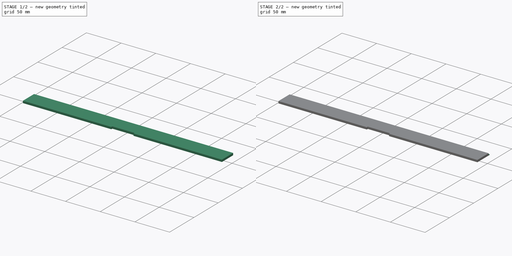
[diagram: build sequence overview — one tinted view per stage of 2, left to right]
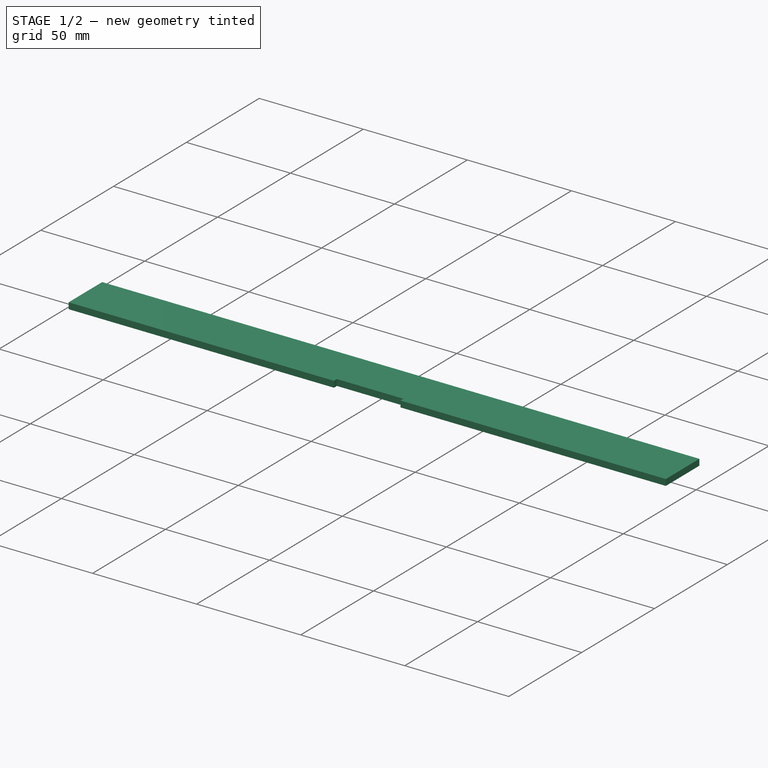
[diagram: stage 1 of 2 — iso view after this stage's code; geometry added in this stage tinted green]
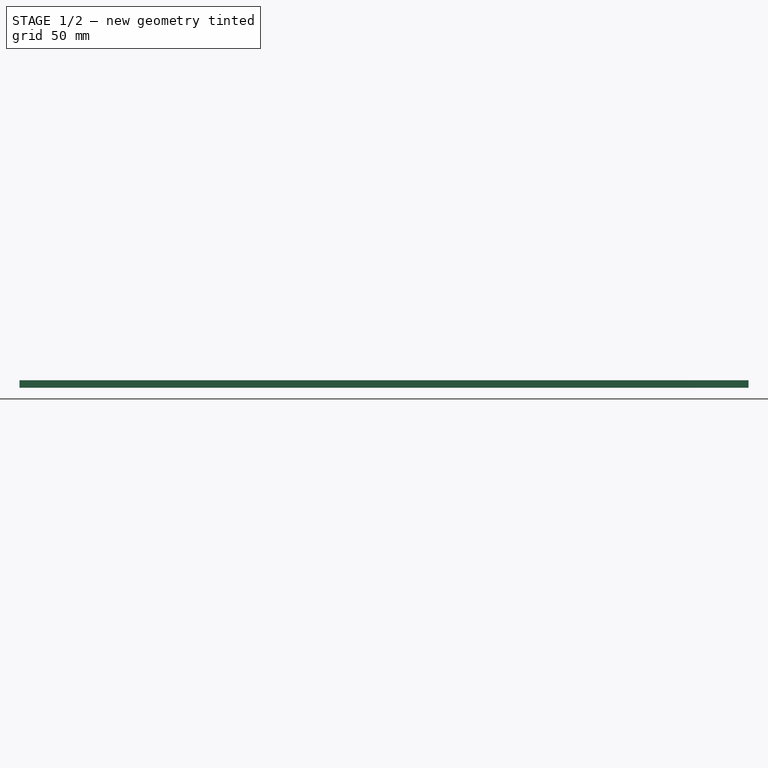
[diagram: stage 1 of 2 — front view after this stage's code; geometry added in this stage tinted green]
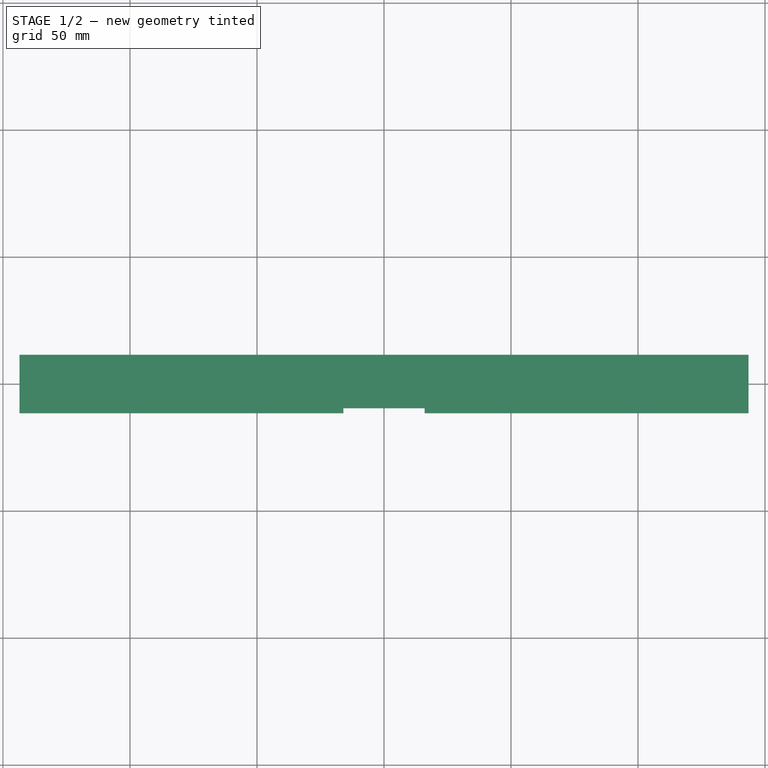
[diagram: stage 1 of 2 — top view after this stage's code; geometry added in this stage tinted green]
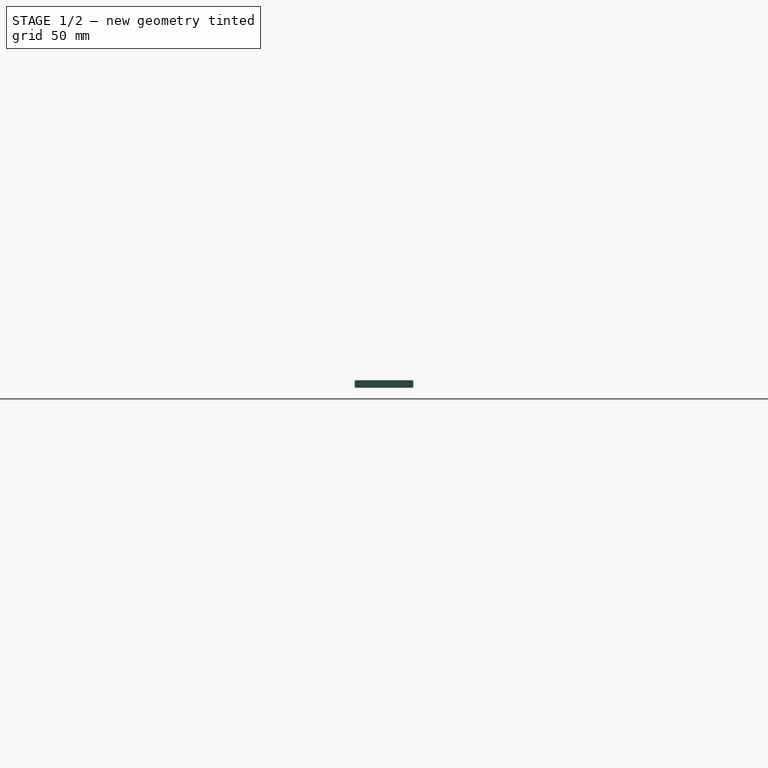
[diagram: stage 1 of 2 — right view after this stage's code; geometry added in this stage tinted green]
FCSTD DOCUMENT  (FreeCAD 1.0R39109 (Git))
Label: keyboard top blank
License: All rights reserved
LicenseURL: http://en.wikipedia.org/wiki/All_rights_reserved
objects: Sketcher::SketchObject×2, PartDesign::Pad×2, PartDesign::Body×1
note: 11 computed .brp shape members not serialized (recipe doc carries the construction recipe); baked Part::Feature solids carry a one-line shape summary decoded from their .brp

FEATURE [Sketcher::SketchObject] Sketch
  ArcFitTolerance = 1e-06
  AttachmentSupport = -> [XY_Plane]
  FullyConstrained = true
  MakeInternals = false
  MapMode = 5
  sketch-geometry (8):
    g0: LineSegment StartX=-143.5 StartY=11.5 StartZ=0 EndX=-143.5 EndY=-11.5 EndZ=0
    g1: LineSegment StartX=-143.5 StartY=-11.5 StartZ=0 EndX=-16 EndY=-11.5 EndZ=0
    g2: LineSegment StartX=143.5 StartY=-11.5 StartZ=0 EndX=143.5 EndY=11.5 EndZ=0
    g3: LineSegment StartX=143.5 StartY=11.5 StartZ=0 EndX=-143.5 EndY=11.5 EndZ=0
    g4: LineSegment StartX=16 StartY=-11.5 StartZ=0 EndX=16 EndY=-9.5 EndZ=0
    g5: LineSegment StartX=16 StartY=-9.5 StartZ=0 EndX=-16 EndY=-9.5 EndZ=0
    g6: LineSegment StartX=-16 StartY=-9.5 StartZ=0 EndX=-16 EndY=-11.5 EndZ=0
    g7: LineSegment StartX=16 StartY=-11.5 StartZ=0 EndX=143.5 EndY=-11.5 EndZ=0
  constraints (24):
    c: Distance(g0) = 23
    c: Vertical(g0)
    c: DistanceY(g-1,g0) = 11.5
    c: Horizontal(g1)
    c: Coincident(g1,g0)
    c: DistanceX(g0,g-1) = 143.5
    c: Coincident(g2,g7)
    c: Vertical(g2)
    c: Coincident(g3,g2)
    c: Coincident(g3,g0)
    c: Horizontal(g3)
    c: Coincident(g4,g5)
    c: Coincident(g5,g6)
    c: Vertical(g4)
    c: DistanceX(g-1,g4) = 16
    c: DistanceX(g7,g7) = 127.5
    c: DistanceY(g4,g4) = 2
    c: Coincident(g6,g1)
    c: Horizontal(g5)
    c: Vertical(g6)
    c: DistanceX(g1,g1) = 127.5
    c: Coincident(g4,g7)
    c: Horizontal(g7)
    c: DistanceY(g2,g2) = 23
FEATURE [PartDesign::Pad] Pad
  Direction = (0,0,1)
  Length = 3
  Length2 = 10
  Profile = -> Sketch
  ReferenceAxis = -> Sketch [N_Axis]
  Suppressed = false
  Type = 0
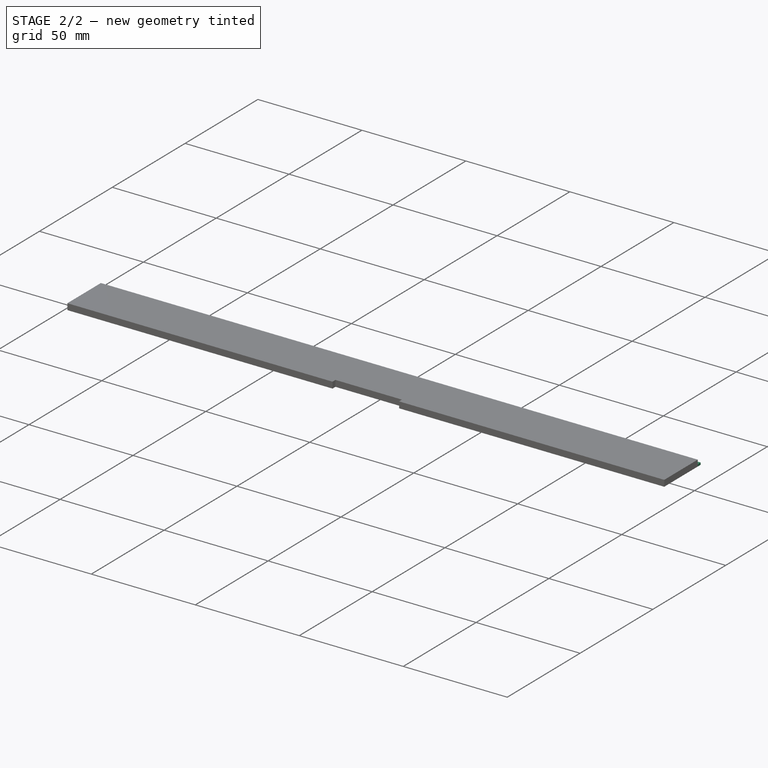
[diagram: stage 2 of 2 — iso view after this stage's code; geometry added in this stage tinted green]
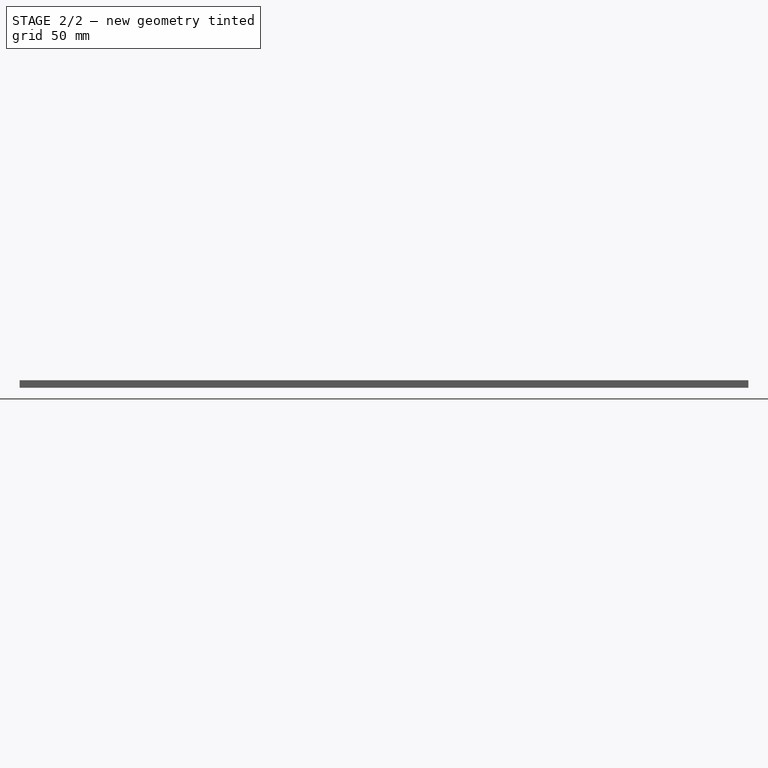
[diagram: stage 2 of 2 — front view after this stage's code; geometry added in this stage tinted green]
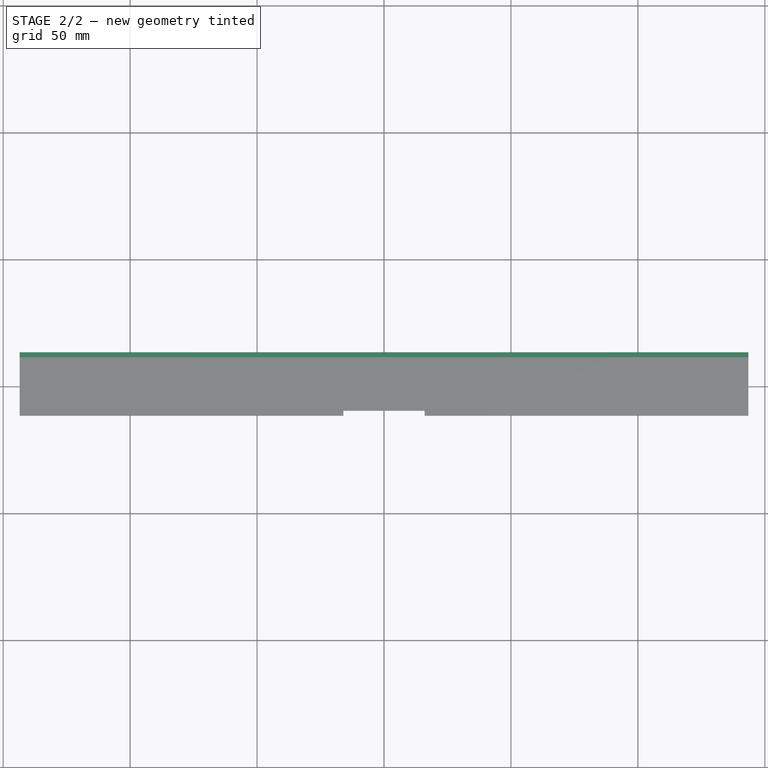
[diagram: stage 2 of 2 — top view after this stage's code; geometry added in this stage tinted green]
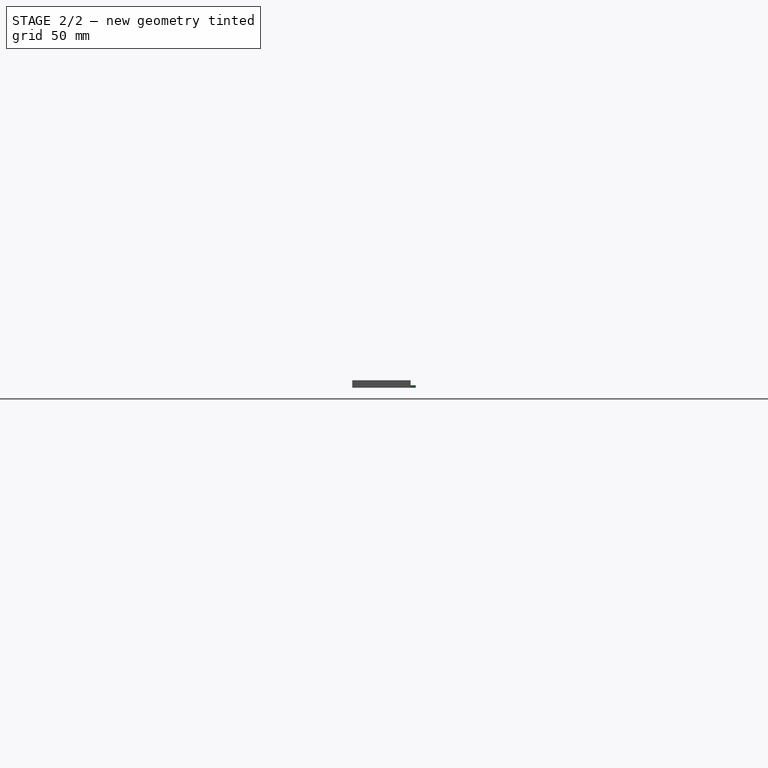
[diagram: stage 2 of 2 — right view after this stage's code; geometry added in this stage tinted green]
FEATURE [Sketcher::SketchObject] Sketch001
  ArcFitTolerance = 1e-06
  AttachmentSupport = -> [Pad]
  FullyConstrained = true
  MakeInternals = false
  MapMode = 5
  Placement = pos=(0,0,0) rot=(1,0,0;3.14159rad)
  sketch-geometry (8):
    g0: LineSegment StartX=-143.5 StartY=11.5 StartZ=0 EndX=-143.5 EndY=-13.5 EndZ=0
    g1: LineSegment StartX=-143.5 StartY=-13.5 StartZ=0 EndX=143.5 EndY=-13.5 EndZ=0
    g2: LineSegment StartX=143.5 StartY=-13.5 StartZ=0 EndX=143.5 EndY=11.5 EndZ=0
    g3: LineSegment StartX=-16 StartY=11.5 StartZ=0 EndX=-16 EndY=9.5 EndZ=0
    g4: LineSegment StartX=-16 StartY=9.5 StartZ=0 EndX=16 EndY=9.5 EndZ=0
    g5: LineSegment StartX=16 StartY=9.5 StartZ=0 EndX=16 EndY=11.5 EndZ=0
    g6: LineSegment StartX=-143.5 StartY=11.5 StartZ=0 EndX=-16 EndY=11.5 EndZ=0
    g7: LineSegment StartX=16 StartY=11.5 StartZ=0 EndX=143.5 EndY=11.5 EndZ=0
  constraints (24):
    c: Coincident(g0,g1)
    c: Coincident(g1,g2)
    c: Vertical(g0)
    c: Vertical(g2)
    c: Horizontal(g1)
    c: Distance(g0,g2) = 287
    c: Distance(g1,g0) = 25
    c: DistanceY(g-1,g0) = 11.5
    c: DistanceX(g0,g-1) = 143.5
    c: Coincident(g3,g4)
    c: Coincident(g4,g5)
    c: Vertical(g3)
    c: Vertical(g5)
    c: Horizontal(g4)
    c: Distance(g3,g5) = 32
    c: Distance(g4,g3) = 2
    c: DistanceX(g-1,g4) = 16
    c: Coincident(g6,g0)
    c: Coincident(g6,g3)
    c: Horizontal(g6)
    c: Coincident(g7,g5)
    c: Coincident(g7,g2)
    c: Horizontal(g7)
    c: DistanceY(g2,g2) = 25
FEATURE [PartDesign::Pad] Pad001
  BaseFeature = -> Pad
  Direction = (0,0,-1)
  Length = 1
  Length2 = 10
  Profile = -> Sketch001
  ReferenceAxis = -> Sketch001 [N_Axis]
  Reversed = true
  Suppressed = false
  Type = 0
FEATURE [PartDesign::Body] Body
  AllowCompound = false
  Group = -> [Sketch,Pad,Sketch001,Pad001]
  Origin = -> Origin
  Tip = -> Pad001
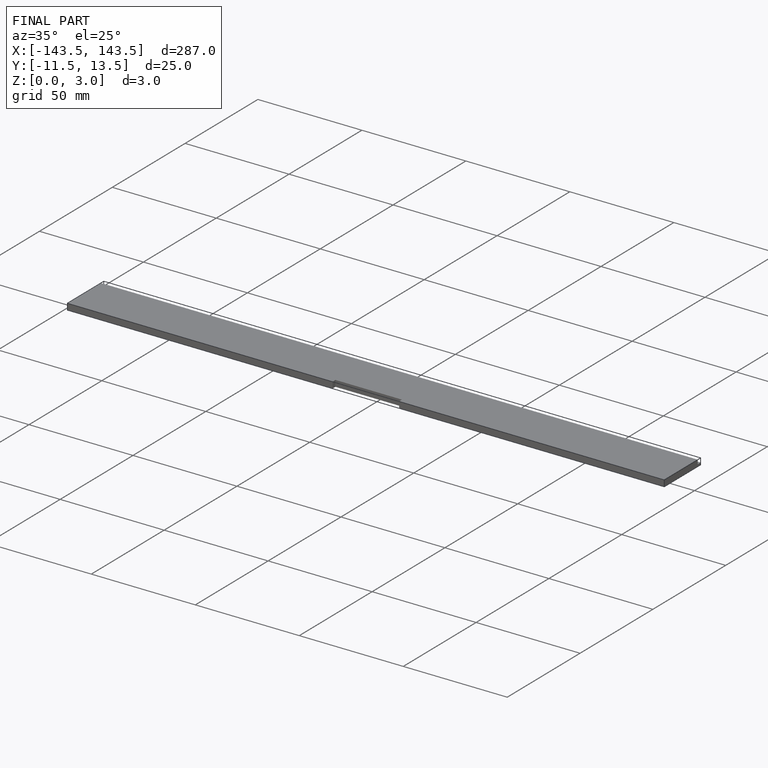
[diagram: finished part — iso view with bounding-box wireframe]
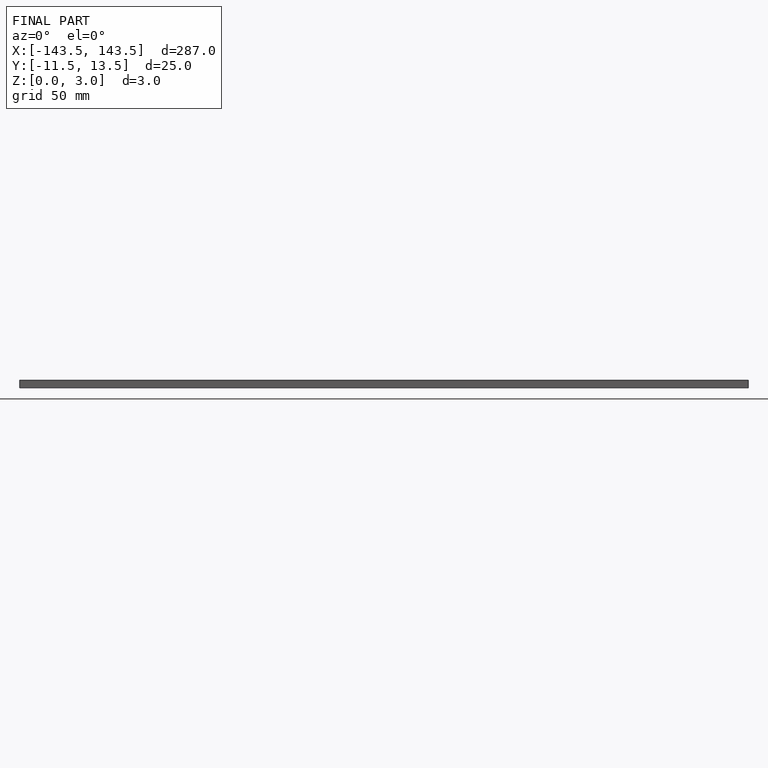
[diagram: finished part — front view with bounding-box wireframe]
